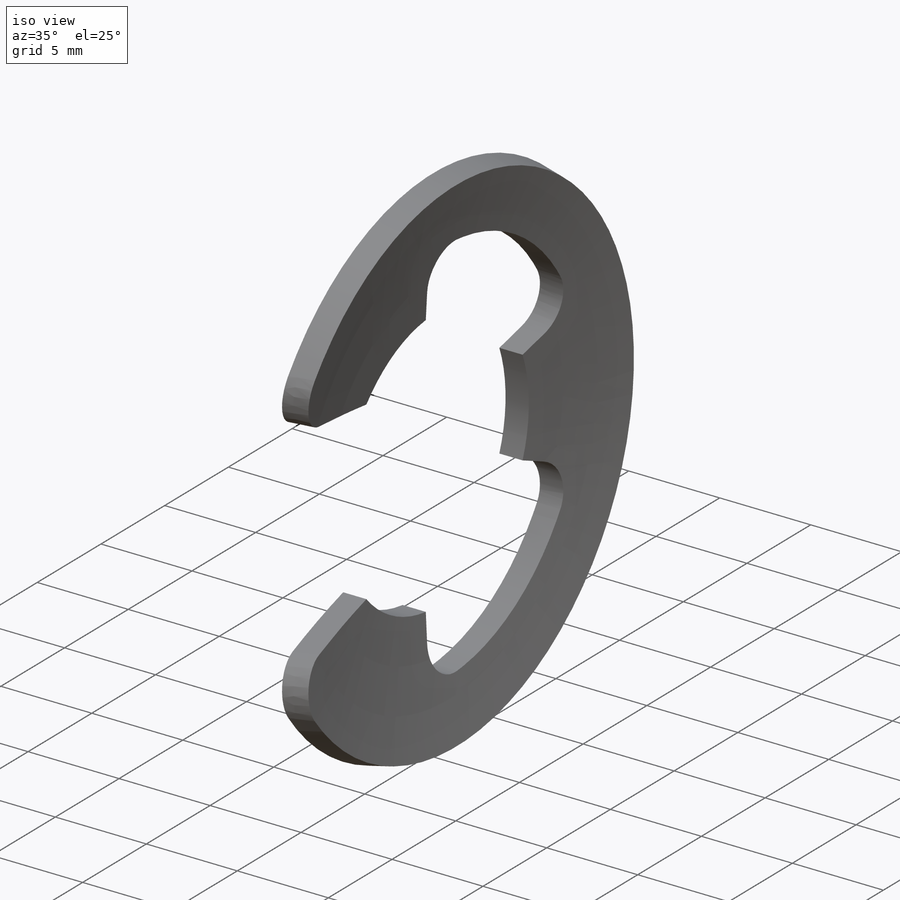
[diagram: iso view]
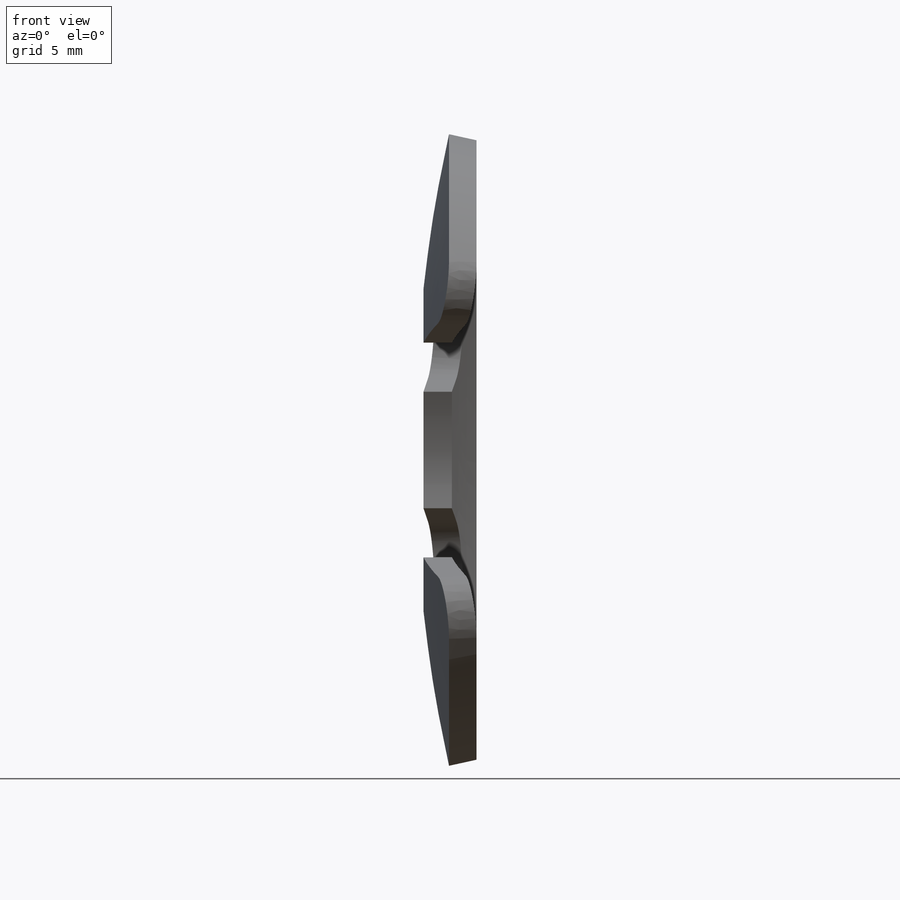
[diagram: front view]
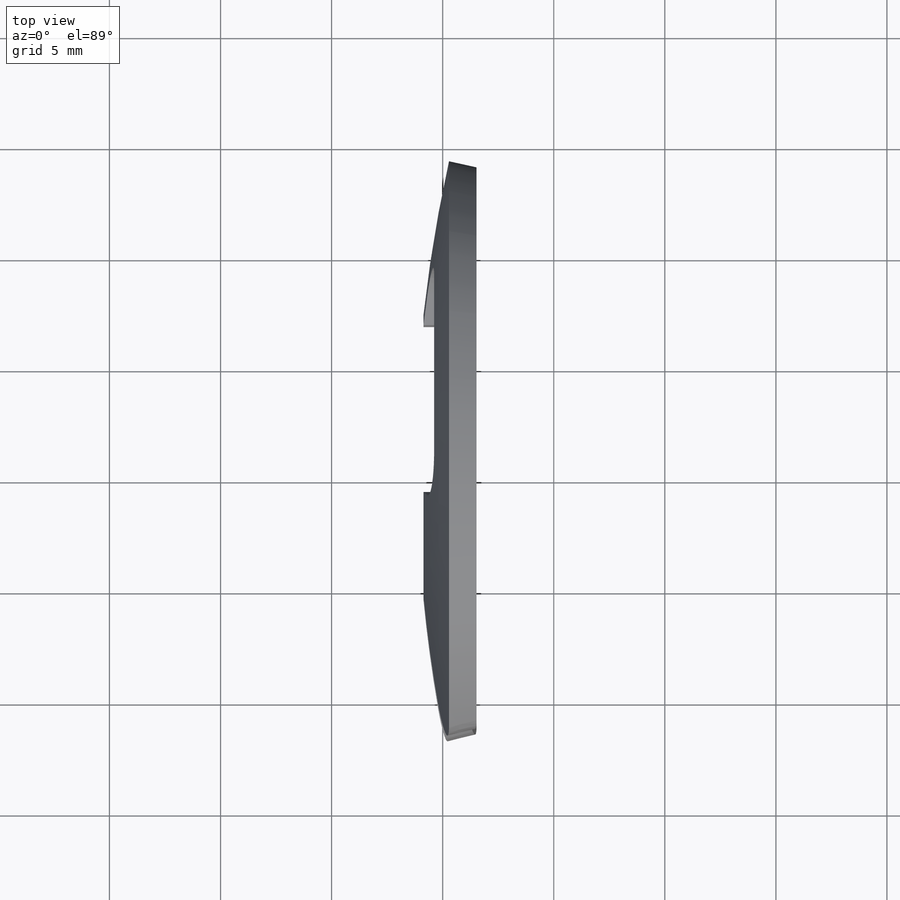
[diagram: top view]
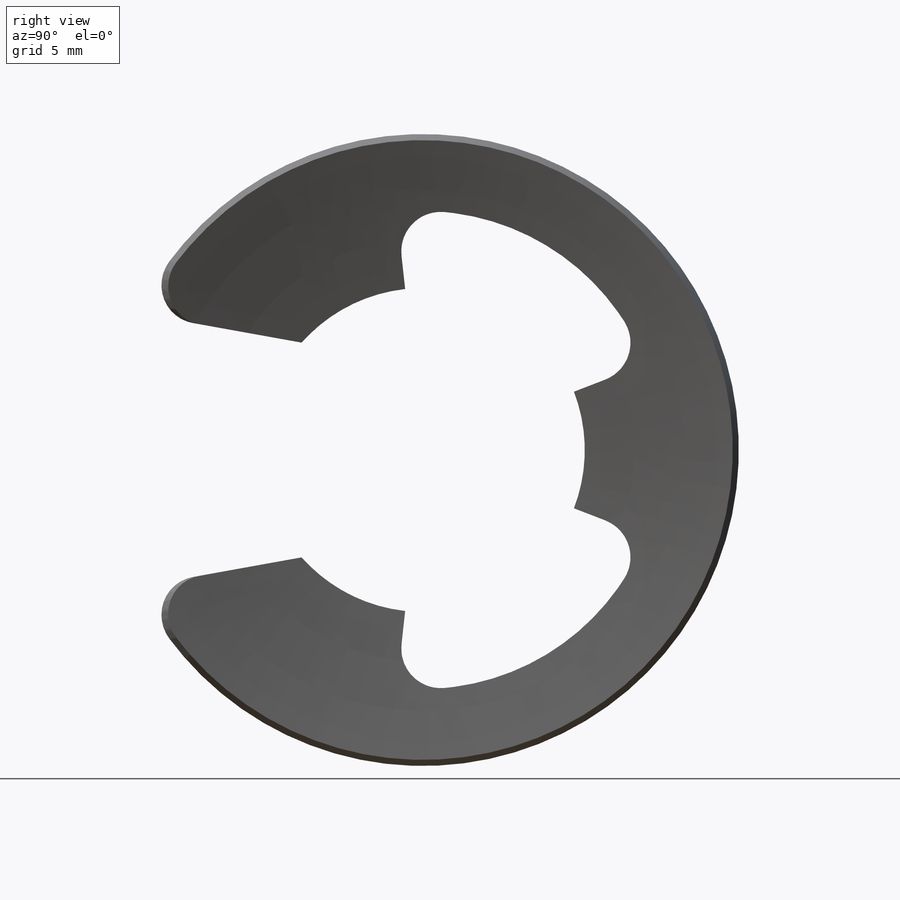
[diagram: right view]
SOLIDWORKS PART (.sldprt)
format: sldprt  version: not decoded by parser v0  size: 338,944 bytes
history: native  units: mm
features: sketch x3, revolve x2, material x1, plane x1, cut_extrude x1, fillet x1 (+11 scaffold rows collapsed)
feature tree (20):
  scaffold x11  (default folders/planes/origin — collapsed)
  material  "Cast Carbon Steel"
  sketch  "Sketch2"  dims[c1.Th=1.27mm c1.Bh=2.794mm c1.OD=28.448mm c2.Th=1.27mm]
  revolve  "Revolve1"  Angle=360deg
  plane  "Plane1"
  sketch  "Sketch1"  dims[c1.OD=~95.467344mm c1.L=28.956mm c1.Df=~44.936653mm c1.D=14.5796mm c1.D1=4.1148mm c1.D5=1.1938mm c2.D1=10.7569mm c2.D2=3.4671mm c3.D2=~60.241448deg c4.D2=2.3368mm c4.D3=~6.844632mm c4.D4=~0.839061mm c4.D5=~4.638511mm c5.D2=~13.12164mm c5.D3=~2.26822mm c5.D5=~0.509803mm c5.D4=~5.248656mm c6.D3=~5.248656mm]
  cut_extrude  "Cut-Extrude1"  [1 undecoded]
  fillet  "Fillet1"  Radius=1.778mm
  sketch  "Sketch3"  dims[c1.Ds=19.05mm c1.Dg=14.732mm c1.W=2.159mm c1.D1=5.3975mm c1.D2=21.59mm c1.D3=~0.855501mm c2.D3=45.0deg c2.D1=5.3975mm c3.D3=~1.439371mm c4.D3=45.0deg c4.Ds=19.05mm]
  revolve  "Revolve2"  Angle=360deg
decode coverage: 6 of 7 modeling features carry decoded parameters
note: ~ marks probable driven/reference dimensions
note: 1 parameter value undecoded
note: suppression state not decoded; provenance and decode notes live in map.json
